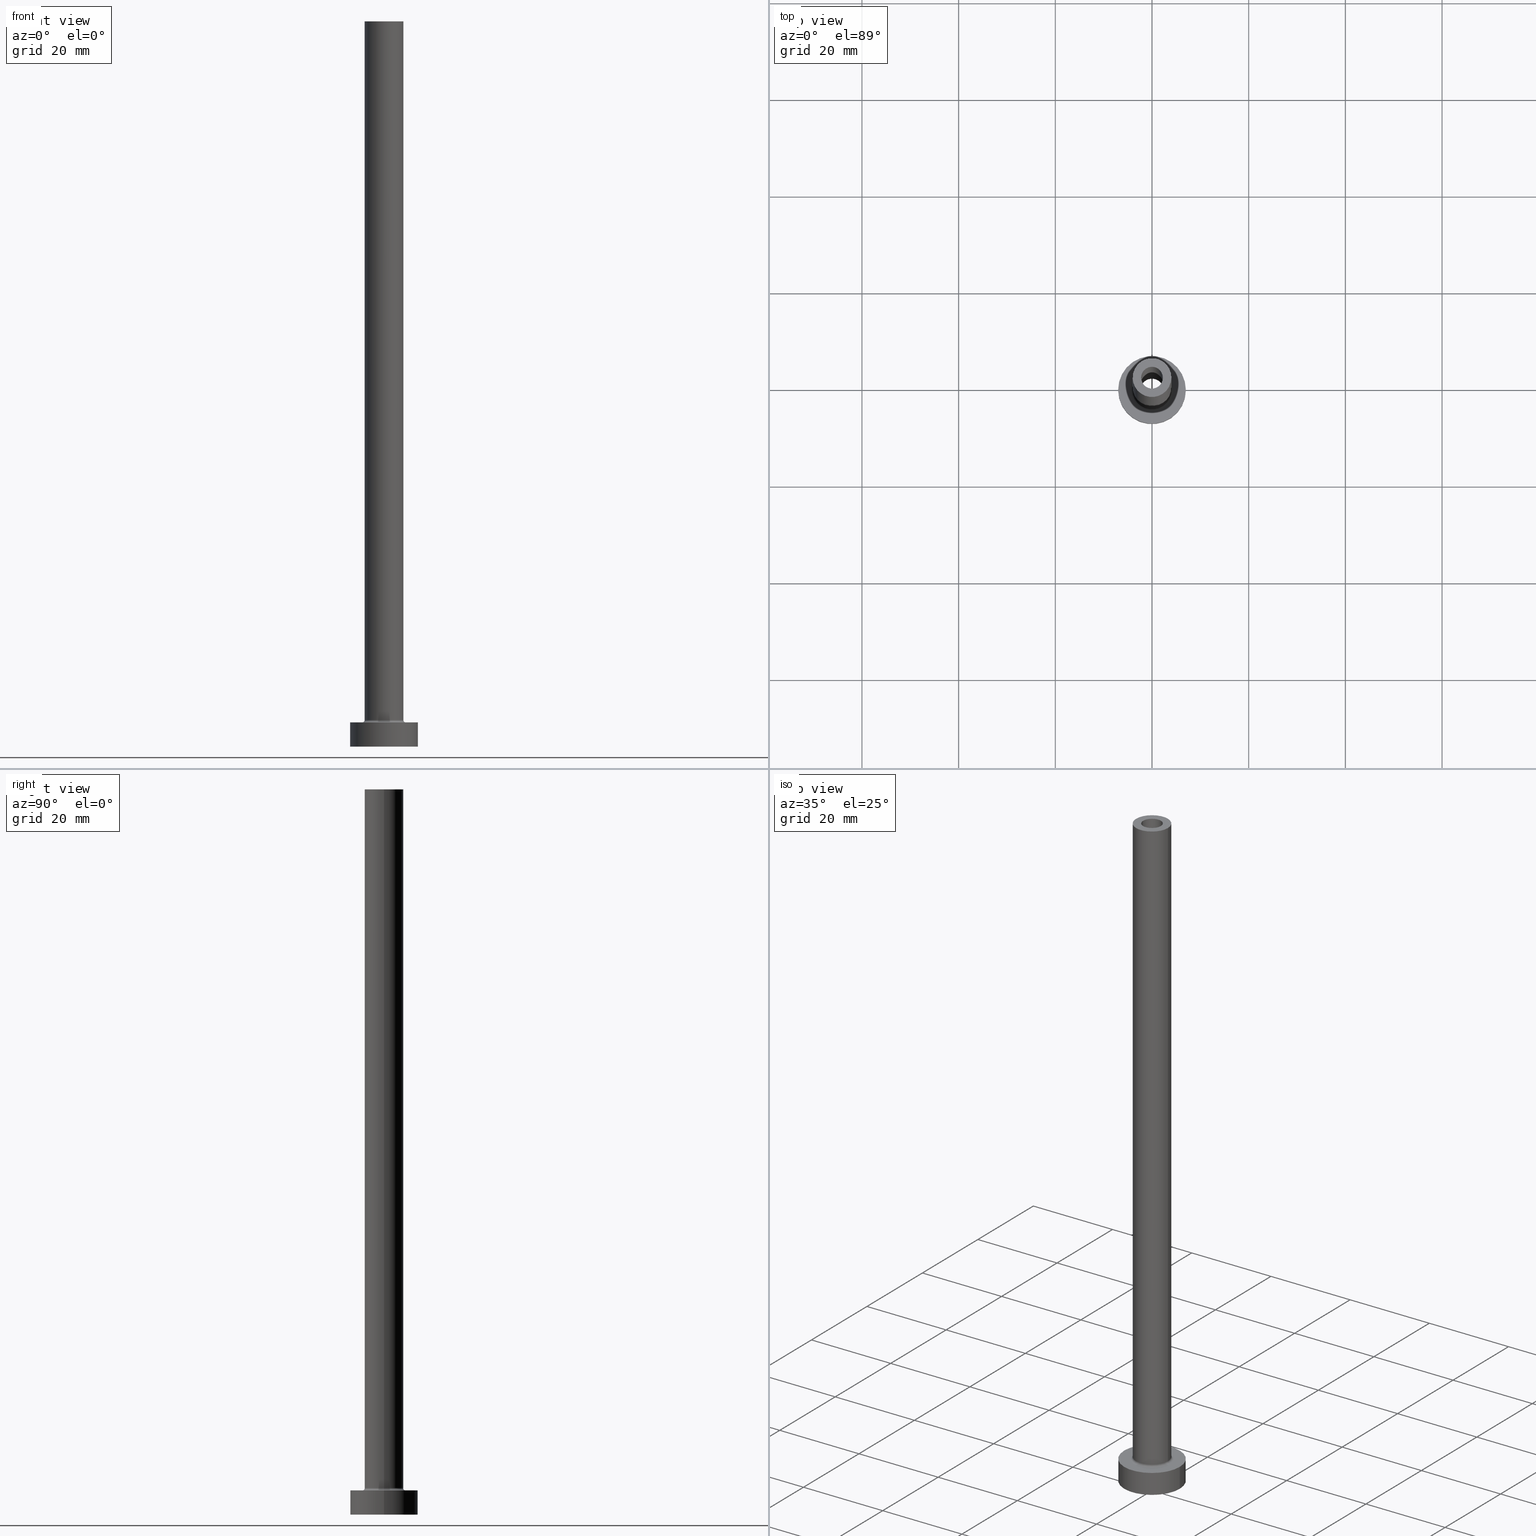
[diagram: canonical four-view strip — front | top / right | iso, engineering-drawing reading convention]
A machine part, canonical four-view strip (front | top / right | iso — engineering-drawing reading convention). The complete STEP part file that produces these views, byte-faithful:
ISO-10303-21;
HEADER;
FILE_DESCRIPTION (( 'STEP AP203' ),
    '1' );
FILE_NAME ('119c.STEP',
    '2023-02-13T17:23:35',
    ( '' ),
    ( '' ),
    'SwSTEP 2.0',
    'SolidWorks 2019',
    '' );
FILE_SCHEMA (( 'CONFIG_CONTROL_DESIGN' ));
ENDSEC;

DATA;
#1 = EDGE_CURVE ( 'NONE', #356, #197, #260, .T. ) ;
#2 = VERTEX_POINT ( 'NONE', #202 ) ;
#3 = CARTESIAN_POINT ( 'NONE',  ( -4.500000000000000888, 5.510910596163089556E-16, 5.500000000000005329 ) ) ;
#4 = ORIENTED_EDGE ( 'NONE', *, *, #62, .T. ) ;
#5 = AXIS2_PLACEMENT_3D ( 'NONE', #313, #118, #311 ) ;
#6 = DIRECTION ( 'NONE',  ( 1.000000000000000000, 0.000000000000000000, 0.000000000000000000 ) ) ;
#7 = CIRCLE ( 'NONE', #188, 2.399999999999999911 ) ;
#8 = DIRECTION ( 'NONE',  ( 0.000000000000000000, 0.000000000000000000, 1.000000000000000000 ) ) ;
#9 = VECTOR ( 'NONE', #12, 1000.000000000000000 ) ;
#10 = CARTESIAN_POINT ( 'NONE',  ( 0.000000000000000000, 0.000000000000000000, 105.0000000000000000 ) ) ;
#11 = ORIENTED_EDGE ( 'NONE', *, *, #375, .F. ) ;
#12 = DIRECTION ( 'NONE',  ( -0.000000000000000000, -0.000000000000000000, -1.000000000000000000 ) ) ;
#13 = PERSON_AND_ORGANIZATION_ROLE ( 'classification_officer' ) ;
#14 = VERTEX_POINT ( 'NONE', #412 ) ;
#15 = CARTESIAN_POINT ( 'NONE',  ( 0.000000000000000000, 0.000000000000000000, 5.500000000000005329 ) ) ;
#16 = ORIENTED_EDGE ( 'NONE', *, *, #206, .T. ) ;
#17 = AXIS2_PLACEMENT_3D ( 'NONE', #153, #281, #395 ) ;
#18 = PERSON_AND_ORGANIZATION_ROLE ( 'creator' ) ;
#19 = PRODUCT_DEFINITION ( 'NEZN�M�', '', #446, #178 ) ;
#20 = DATE_AND_TIME ( #370, #330 ) ;
#21 = EDGE_CURVE ( 'NONE', #37, #204, #273, .T. ) ;
#22 = CIRCLE ( 'NONE', #241, 0.5000000000000004441 ) ;
#23 = CARTESIAN_POINT ( 'NONE',  ( -7.000000000000000000, 0.000000000000000000, 0.000000000000000000 ) ) ;
#24 = FACE_BOUND ( 'NONE', #299, .T. ) ;
#25 = DATE_TIME_ROLE ( 'classification_date' ) ;
#26 = CC_DESIGN_PERSON_AND_ORGANIZATION_ASSIGNMENT ( #407, #18, ( #19 ) ) ;
#27 = FACE_OUTER_BOUND ( 'NONE', #347, .T. ) ;
#28 = PLANE ( 'NONE',  #42 ) ;
#29 = CIRCLE ( 'NONE', #232, 4.500000000000000888 ) ;
#30 = VERTEX_POINT ( 'NONE', #107 ) ;
#31 = APPLICATION_CONTEXT ( 'configuration controlled 3d designs of mechanical parts and assemblies' ) ;
#32 = DIRECTION ( 'NONE',  ( 0.000000000000000000, 0.000000000000000000, 1.000000000000000000 ) ) ;
#33 = PLANE ( 'NONE',  #88 ) ;
#34 = ORIENTED_EDGE ( 'NONE', *, *, #397, .T. ) ;
#35 = CC_DESIGN_APPROVAL ( #114, ( #19 ) ) ;
#36 = CARTESIAN_POINT ( 'NONE',  ( -2.399999999999999911, 0.000000000000000000, 105.0000000000000000 ) ) ;
#37 = VERTEX_POINT ( 'NONE', #94 ) ;
#38 = CARTESIAN_POINT ( 'NONE',  ( 2.250000000000000000, 2.755455298081543792E-16, 105.0000000000000000 ) ) ;
#39 = CARTESIAN_POINT ( 'NONE',  ( 0.000000000000000000, 0.000000000000000000, 111.7882250993908571 ) ) ;
#40 = VERTEX_POINT ( 'NONE', #450 ) ;
#41 = CC_DESIGN_PERSON_AND_ORGANIZATION_ASSIGNMENT ( #323, #185, ( #222 ) ) ;
#42 = AXIS2_PLACEMENT_3D ( 'NONE', #263, #32, #414 ) ;
#43 = CARTESIAN_POINT ( 'NONE',  ( 0.000000000000000000, 0.000000000000000000, 5.500000000000005329 ) ) ;
#44 = DIRECTION ( 'NONE',  ( -1.000000000000000000, 0.000000000000000000, 0.000000000000000000 ) ) ;
#45 = VERTEX_POINT ( 'NONE', #67 ) ;
#46 = DIRECTION ( 'NONE',  ( 1.000000000000000000, 0.000000000000000000, 0.000000000000000000 ) ) ;
#47 = CC_DESIGN_APPROVAL ( #415, ( #446 ) ) ;
#48 = ORIENTED_EDGE ( 'NONE', *, *, #390, .F. ) ;
#49 = DIRECTION ( 'NONE',  ( 1.224646799147353207E-16, 1.000000000000000000, -0.000000000000000000 ) ) ;
#50 = CARTESIAN_POINT ( 'NONE',  ( 0.000000000000000000, 0.000000000000000000, 150.0000000000000000 ) ) ;
#51 = ORIENTED_EDGE ( 'NONE', *, *, #133, .T. ) ;
#52 = ADVANCED_FACE ( 'NONE', ( #137 ), #234, .T. ) ;
#53 = APPLICATION_PROTOCOL_DEFINITION ( 'international standard', 'config_control_design', 1994, #458 ) ;
#54 = AXIS2_PLACEMENT_3D ( 'NONE', #39, #175, #44 ) ;
#55 = CALENDAR_DATE ( 2023, 13, 2 ) ;
#56 = COORDINATED_UNIVERSAL_TIME_OFFSET ( 1, 0, .AHEAD. ) ;
#57 = VECTOR ( 'NONE', #327, 1000.000000000000000 ) ;
#58 = ORIENTED_EDGE ( 'NONE', *, *, #390, .T. ) ;
#59 = EDGE_LOOP ( 'NONE', ( #11, #342 ) ) ;
#60 = DIRECTION ( 'NONE',  ( -0.000000000000000000, -0.000000000000000000, -1.000000000000000000 ) ) ;
#61 = ORIENTED_EDGE ( 'NONE', *, *, #74, .T. ) ;
#62 = EDGE_CURVE ( 'NONE', #30, #356, #404, .T. ) ;
#63 = FACE_OUTER_BOUND ( 'NONE', #298, .T. ) ;
#64 = CARTESIAN_POINT ( 'NONE',  ( 0.000000000000000000, 0.000000000000000000, 105.0000000000000000 ) ) ;
#65 = CIRCLE ( 'NONE', #432, 4.000000000000000000 ) ;
#66 = PRODUCT_RELATED_PRODUCT_CATEGORY ( 'detail', '', ( #222 ) ) ;
#67 = CARTESIAN_POINT ( 'NONE',  ( 7.000000000000000000, 8.572527594031473190E-16, 0.000000000000000000 ) ) ;
#68 = ORIENTED_EDGE ( 'NONE', *, *, #268, .F. ) ;
#69 = CARTESIAN_POINT ( 'NONE',  ( 0.000000000000000000, 0.000000000000000000, 111.7882250993908571 ) ) ;
#70 = CARTESIAN_POINT ( 'NONE',  ( 0.000000000000000000, 0.000000000000000000, 105.0000000000000000 ) ) ;
#71 = EDGE_LOOP ( 'NONE', ( #193, #61, #382, #173 ) ) ;
#72 = AXIS2_PLACEMENT_3D ( 'NONE', #166, #60, #192 ) ;
#73 = CARTESIAN_POINT ( 'NONE',  ( -2.399999999999999911, 0.000000000000000000, 0.000000000000000000 ) ) ;
#74 = EDGE_CURVE ( 'NONE', #37, #77, #338, .T. ) ;
#75 = DIRECTION ( 'NONE',  ( 1.000000000000000000, 0.000000000000000000, 0.000000000000000000 ) ) ;
#76 = DIRECTION ( 'NONE',  ( -0.000000000000000000, -0.000000000000000000, -1.000000000000000000 ) ) ;
#77 = VERTEX_POINT ( 'NONE', #191 ) ;
#78 = FACE_BOUND ( 'NONE', #279, .T. ) ;
#79 = FACE_OUTER_BOUND ( 'NONE', #419, .T. ) ;
#80 = VERTEX_POINT ( 'NONE', #333 ) ;
#81 = APPROVAL_STATUS ( 'not_yet_approved' ) ;
#82 = ORIENTED_EDGE ( 'NONE', *, *, #190, .T. ) ;
#83 = ADVANCED_FACE ( 'NONE', ( #24, #134 ), #28, .T. ) ;
#84 = AXIS2_PLACEMENT_3D ( 'NONE', #64, #226, #421 ) ;
#85 = PRODUCT_DEFINITION_SHAPE ( 'NONE', 'NONE',  #19 ) ;
#86 = DIRECTION ( 'NONE',  ( 1.000000000000000000, 0.000000000000000000, 0.000000000000000000 ) ) ;
#87 = DIRECTION ( 'NONE',  ( 0.000000000000000000, 0.000000000000000000, -1.000000000000000000 ) ) ;
#88 = AXIS2_PLACEMENT_3D ( 'NONE', #169, #98, #295 ) ;
#89 = APPROVAL ( #416, 'NEUR�EN�' ) ;
#90 = PERSON_AND_ORGANIZATION ( #349, #116 ) ;
#91 = DIRECTION ( 'NONE',  ( 1.000000000000000000, 0.000000000000000000, -0.000000000000000000 ) ) ;
#92 = CIRCLE ( 'NONE', #5, 7.000000000000000000 ) ;
#93 = ORIENTED_EDGE ( 'NONE', *, *, #147, .T. ) ;
#94 = CARTESIAN_POINT ( 'NONE',  ( 2.399999999999999911, 2.939152317953647106E-16, 105.0000000000000000 ) ) ;
#95 = SECURITY_CLASSIFICATION ( '', '', #359 ) ;
#96 = COORDINATED_UNIVERSAL_TIME_OFFSET ( 1, 0, .AHEAD. ) ;
#97 = ADVANCED_FACE ( 'NONE', ( #417 ), #337, .F. ) ;
#98 = DIRECTION ( 'NONE',  ( 0.000000000000000000, 0.000000000000000000, 1.000000000000000000 ) ) ;
#99 = VERTEX_POINT ( 'NONE', #38 ) ;
#100 = APPROVAL_DATE_TIME ( #165, #89 ) ;
#101 = DIRECTION ( 'NONE',  ( 0.000000000000000000, 0.000000000000000000, -1.000000000000000000 ) ) ;
#102 = ORIENTED_EDGE ( 'NONE', *, *, #375, .T. ) ;
#103 = ORIENTED_EDGE ( 'NONE', *, *, #147, .F. ) ;
#104 = LOCAL_TIME ( 18, 23, 35.00000000000000000, #96 ) ;
#105 = EDGE_CURVE ( 'NONE', #364, #2, #365, .T. ) ;
#106 = CARTESIAN_POINT ( 'NONE',  ( -7.000000000000000000, 0.000000000000000000, 5.000000000000000000 ) ) ;
#107 = CARTESIAN_POINT ( 'NONE',  ( 2.250000000000000000, 2.755455298081543792E-16, 150.0000000000000000 ) ) ;
#108 = DIRECTION ( 'NONE',  ( 0.000000000000000000, -1.000000000000000000, 0.000000000000000000 ) ) ;
#109 = ORIENTED_EDGE ( 'NONE', *, *, #289, .F. ) ;
#110 = CARTESIAN_POINT ( 'NONE',  ( 2.250000000000000000, 2.755455298081543792E-16, 150.0000000000000000 ) ) ;
#111 = DIRECTION ( 'NONE',  ( 1.000000000000000000, 0.000000000000000000, -0.000000000000000000 ) ) ;
#112 = ORIENTED_EDGE ( 'NONE', *, *, #268, .T. ) ;
#113 = CARTESIAN_POINT ( 'NONE',  ( 0.000000000000000000, 0.000000000000000000, 5.000000000000000000 ) ) ;
#114 = APPROVAL ( #81, 'NEUR�EN�' ) ;
#115 = DIRECTION ( 'NONE',  ( -0.000000000000000000, -0.000000000000000000, -1.000000000000000000 ) ) ;
#116 = ORGANIZATION ( 'NEUR�EN�', 'NEUR�EN�', '' ) ;
#117 = ORIENTED_EDGE ( 'NONE', *, *, #296, .T. ) ;
#118 = DIRECTION ( 'NONE',  ( 0.000000000000000000, 0.000000000000000000, 1.000000000000000000 ) ) ;
#119 = ORIENTED_EDGE ( 'NONE', *, *, #133, .F. ) ;
#120 = DIRECTION ( 'NONE',  ( 0.000000000000000000, 0.000000000000000000, 1.000000000000000000 ) ) ;
#121 = FACE_OUTER_BOUND ( 'NONE', #309, .T. ) ;
#122 = ORIENTED_EDGE ( 'NONE', *, *, #164, .F. ) ;
#123 = DIRECTION ( 'NONE',  ( 0.000000000000000000, 0.000000000000000000, 1.000000000000000000 ) ) ;
#124 = APPROVAL_ROLE ( '' ) ;
#125 = AXIS2_PLACEMENT_3D ( 'NONE', #142, #162, #91 ) ;
#126 = DIRECTION ( 'NONE',  ( 0.000000000000000000, 0.000000000000000000, 1.000000000000000000 ) ) ;
#127 =( NAMED_UNIT ( * ) SI_UNIT ( $, .STERADIAN. ) SOLID_ANGLE_UNIT ( ) );
#128 = VECTOR ( 'NONE', #266, 1000.000000000000000 ) ;
#129 = EDGE_CURVE ( 'NONE', #197, #99, #224, .T. ) ;
#130 = DATE_TIME_ROLE ( 'creation_date' ) ;
#131 = CIRCLE ( 'NONE', #186, 7.000000000000000000 ) ;
#132 = DIRECTION ( 'NONE',  ( 0.000000000000000000, 0.000000000000000000, 1.000000000000000000 ) ) ;
#133 = EDGE_CURVE ( 'NONE', #80, #151, #92, .T. ) ;
#134 = FACE_OUTER_BOUND ( 'NONE', #139, .T. ) ;
#135 = CIRCLE ( 'NONE', #315, 2.399999999999999911 ) ;
#136 = CALENDAR_DATE ( 2023, 13, 2 ) ;
#137 = FACE_OUTER_BOUND ( 'NONE', #383, .T. ) ;
#138 = DIRECTION ( 'NONE',  ( 1.000000000000000000, 0.000000000000000000, 0.000000000000000000 ) ) ;
#139 = EDGE_LOOP ( 'NONE', ( #51, #220 ) ) ;
#140 = APPROVAL_PERSON_ORGANIZATION ( #221, #415, #124 ) ;
#141 = DIRECTION ( 'NONE',  ( 0.000000000000000000, 0.000000000000000000, 1.000000000000000000 ) ) ;
#142 = CARTESIAN_POINT ( 'NONE',  ( 0.000000000000000000, 0.000000000000000000, 150.0000000000000000 ) ) ;
#143 = ORIENTED_EDGE ( 'NONE', *, *, #296, .F. ) ;
#144 = DIRECTION ( 'NONE',  ( -0.000000000000000000, -0.000000000000000000, -1.000000000000000000 ) ) ;
#145 = AXIS2_PLACEMENT_3D ( 'NONE', #113, #219, #244 ) ;
#146 = ORIENTED_EDGE ( 'NONE', *, *, #227, .F. ) ;
#147 = EDGE_CURVE ( 'NONE', #30, #99, #424, .T. ) ;
#148 = DIRECTION ( 'NONE',  ( 0.000000000000000000, 0.000000000000000000, 1.000000000000000000 ) ) ;
#149 = UNCERTAINTY_MEASURE_WITH_UNIT (LENGTH_MEASURE( 1.000000000000000082E-05 ), #156, 'distance_accuracy_value', 'NONE');
#150 = CIRCLE ( 'NONE', #17, 2.250000000000000000 ) ;
#151 = VERTEX_POINT ( 'NONE', #398 ) ;
#152 = CARTESIAN_POINT ( 'NONE',  ( 0.000000000000000000, 0.000000000000000000, 105.0000000000000000 ) ) ;
#153 = CARTESIAN_POINT ( 'NONE',  ( 0.000000000000000000, 0.000000000000000000, 150.0000000000000000 ) ) ;
#154 = FACE_OUTER_BOUND ( 'NONE', #176, .T. ) ;
#155 = CC_DESIGN_PERSON_AND_ORGANIZATION_ASSIGNMENT ( #317, #13, ( #95 ) ) ;
#156 =( LENGTH_UNIT ( ) NAMED_UNIT ( * ) SI_UNIT ( .MILLI., .METRE. ) );
#157 = DIRECTION ( 'NONE',  ( 1.000000000000000000, 0.000000000000000000, 0.000000000000000000 ) ) ;
#158 = CC_DESIGN_SECURITY_CLASSIFICATION ( #95, ( #446 ) ) ;
#159 = COORDINATED_UNIVERSAL_TIME_OFFSET ( 1, 0, .AHEAD. ) ;
#160 = LINE ( 'NONE', #286, #57 ) ;
#161 = EDGE_CURVE ( 'NONE', #14, #423, #357, .T. ) ;
#162 = DIRECTION ( 'NONE',  ( 0.000000000000000000, 0.000000000000000000, 1.000000000000000000 ) ) ;
#163 = AXIS2_PLACEMENT_3D ( 'NONE', #15, #367, #157 ) ;
#164 = EDGE_CURVE ( 'NONE', #204, #37, #7, .T. ) ;
#165 = DATE_AND_TIME ( #294, #104 ) ;
#166 = CARTESIAN_POINT ( 'NONE',  ( 0.000000000000000000, 0.000000000000000000, 5.000000000000000000 ) ) ;
#167 = LOCAL_TIME ( 18, 23, 35.00000000000000000, #454 ) ;
#168 = CC_DESIGN_PERSON_AND_ORGANIZATION_ASSIGNMENT ( #90, #217, ( #446 ) ) ;
#169 = CARTESIAN_POINT ( 'NONE',  ( 0.000000000000000000, 0.000000000000000000, 0.000000000000000000 ) ) ;
#170 = ORIENTED_EDGE ( 'NONE', *, *, #408, .F. ) ;
#171 = DIRECTION ( 'NONE',  ( 1.000000000000000000, 0.000000000000000000, 0.000000000000000000 ) ) ;
#172 = ADVANCED_FACE ( 'NONE', ( #174 ), #237, .F. ) ;
#173 = ORIENTED_EDGE ( 'NONE', *, *, #379, .F. ) ;
#174 = FACE_OUTER_BOUND ( 'NONE', #71, .T. ) ;
#175 = DIRECTION ( 'NONE',  ( 0.000000000000000000, 0.000000000000000000, -1.000000000000000000 ) ) ;
#176 = EDGE_LOOP ( 'NONE', ( #200, #459 ) ) ;
#177 = DIRECTION ( 'NONE',  ( -1.000000000000000000, 0.000000000000000000, 0.000000000000000000 ) ) ;
#178 = DESIGN_CONTEXT ( 'detailed design', #458, 'design' ) ;
#179 = DIRECTION ( 'NONE',  ( -1.000000000000000000, 0.000000000000000000, 0.000000000000000000 ) ) ;
#180 = ADVANCED_FACE ( 'NONE', ( #240 ), #354, .T. ) ;
#181 = ORIENTED_EDGE ( 'NONE', *, *, #184, .T. ) ;
#182 = PLANE ( 'NONE',  #125 ) ;
#183 = ORIENTED_EDGE ( 'NONE', *, *, #215, .F. ) ;
#184 = EDGE_CURVE ( 'NONE', #423, #396, #380, .T. ) ;
#185 = PERSON_AND_ORGANIZATION_ROLE ( 'design_owner' ) ;
#186 = AXIS2_PLACEMENT_3D ( 'NONE', #355, #391, #75 ) ;
#187 = DATE_AND_TIME ( #55, #284 ) ;
#188 = AXIS2_PLACEMENT_3D ( 'NONE', #152, #386, #352 ) ;
#189 = AXIS2_PLACEMENT_3D ( 'NONE', #413, #101, #293 ) ;
#190 = EDGE_CURVE ( 'NONE', #423, #364, #231, .T. ) ;
#191 = CARTESIAN_POINT ( 'NONE',  ( 2.399999999999999911, 2.939152317953647106E-16, 0.000000000000000000 ) ) ;
#192 = DIRECTION ( 'NONE',  ( -1.000000000000000000, 0.000000000000000000, 0.000000000000000000 ) ) ;
#193 = ORIENTED_EDGE ( 'NONE', *, *, #164, .T. ) ;
#194 = AXIS2_PLACEMENT_3D ( 'NONE', #198, #341, #345 ) ;
#195 = CARTESIAN_POINT ( 'NONE',  ( 0.000000000000000000, 0.000000000000000000, 150.0000000000000000 ) ) ;
#196 = EDGE_CURVE ( 'NONE', #77, #214, #399, .T. ) ;
#197 = VERTEX_POINT ( 'NONE', #348 ) ;
#198 = CARTESIAN_POINT ( 'NONE',  ( 0.000000000000000000, 0.000000000000000000, 5.000000000000000000 ) ) ;
#199 = FACE_OUTER_BOUND ( 'NONE', #455, .T. ) ;
#200 = ORIENTED_EDGE ( 'NONE', *, *, #215, .T. ) ;
#201 = ORIENTED_EDGE ( 'NONE', *, *, #223, .F. ) ;
#202 = CARTESIAN_POINT ( 'NONE',  ( 4.500000000000000888, 0.000000000000000000, 5.000000000000002665 ) ) ;
#203 = DIRECTION ( 'NONE',  ( 1.000000000000000000, 0.000000000000000000, 0.000000000000000000 ) ) ;
#204 = VERTEX_POINT ( 'NONE', #36 ) ;
#205 = DIRECTION ( 'NONE',  ( -0.000000000000000000, -0.000000000000000000, -1.000000000000000000 ) ) ;
#206 = EDGE_CURVE ( 'NONE', #303, #45, #251, .T. ) ;
#207 = FACE_OUTER_BOUND ( 'NONE', #249, .T. ) ;
#208 = ORIENTED_EDGE ( 'NONE', *, *, #129, .T. ) ;
#209 = DIRECTION ( 'NONE',  ( 1.000000000000000000, 0.000000000000000000, 0.000000000000000000 ) ) ;
#210 = DIRECTION ( 'NONE',  ( 1.000000000000000000, 0.000000000000000000, 0.000000000000000000 ) ) ;
#211 = CARTESIAN_POINT ( 'NONE',  ( 0.000000000000000000, 0.000000000000000000, 0.000000000000000000 ) ) ;
#212 = VECTOR ( 'NONE', #216, 1000.000000000000000 ) ;
#213 = DIRECTION ( 'NONE',  ( 0.000000000000000000, 0.000000000000000000, 1.000000000000000000 ) ) ;
#214 = VERTEX_POINT ( 'NONE', #73 ) ;
#215 = EDGE_CURVE ( 'NONE', #14, #40, #324, .T. ) ;
#216 = DIRECTION ( 'NONE',  ( 0.000000000000000000, 0.000000000000000000, -1.000000000000000000 ) ) ;
#217 = PERSON_AND_ORGANIZATION_ROLE ( 'design_supplier' ) ;
#218 = APPROVAL_PERSON_ORGANIZATION ( #443, #114, #255 ) ;
#219 = DIRECTION ( 'NONE',  ( -0.000000000000000000, -0.000000000000000000, -1.000000000000000000 ) ) ;
#220 = ORIENTED_EDGE ( 'NONE', *, *, #301, .T. ) ;
#221 = PERSON_AND_ORGANIZATION ( #349, #116 ) ;
#222 = PRODUCT ( '119c', '119c', '', ( #401 ) ) ;
#223 = EDGE_CURVE ( 'NONE', #151, #45, #276, .T. ) ;
#224 = CIRCLE ( 'NONE', #329, 2.250000000000000000 ) ;
#225 = CARTESIAN_POINT ( 'NONE',  ( 2.399999999999999911, 2.939152317953647106E-16, 111.7882250993908571 ) ) ;
#226 = DIRECTION ( 'NONE',  ( 0.000000000000000000, 0.000000000000000000, 1.000000000000000000 ) ) ;
#227 = EDGE_CURVE ( 'NONE', #40, #14, #65, .T. ) ;
#228 = DIRECTION ( 'NONE',  ( -0.000000000000000000, -0.000000000000000000, -1.000000000000000000 ) ) ;
#229 = VECTOR ( 'NONE', #374, 1000.000000000000000 ) ;
#230 = ORIENTED_EDGE ( 'NONE', *, *, #184, .F. ) ;
#231 = CIRCLE ( 'NONE', #291, 0.5000000000000004441 ) ;
#232 = AXIS2_PLACEMENT_3D ( 'NONE', #456, #447, #138 ) ;
#233 = CARTESIAN_POINT ( 'NONE',  ( 0.000000000000000000, 0.000000000000000000, 5.000000000000000000 ) ) ;
#234 = CYLINDRICAL_SURFACE ( 'NONE', #194, 7.000000000000000000 ) ;
#235 = CYLINDRICAL_SURFACE ( 'NONE', #54, 2.399999999999999911 ) ;
#236 = ADVANCED_FACE ( 'NONE', ( #78, #154 ), #182, .T. ) ;
#237 = CYLINDRICAL_SURFACE ( 'NONE', #304, 2.399999999999999911 ) ;
#238 = LINE ( 'NONE', #387, #252 ) ;
#239 = ORIENTED_EDGE ( 'NONE', *, *, #1, .F. ) ;
#240 = FACE_OUTER_BOUND ( 'NONE', #385, .T. ) ;
#241 = AXIS2_PLACEMENT_3D ( 'NONE', #248, #108, #253 ) ;
#242 = DIRECTION ( 'NONE',  ( 0.000000000000000000, 0.000000000000000000, -1.000000000000000000 ) ) ;
#243 = ORIENTED_EDGE ( 'NONE', *, *, #190, .F. ) ;
#244 = DIRECTION ( 'NONE',  ( 1.000000000000000000, 0.000000000000000000, 0.000000000000000000 ) ) ;
#245 = EDGE_CURVE ( 'NONE', #396, #423, #267, .T. ) ;
#246 = ORIENTED_EDGE ( 'NONE', *, *, #129, .F. ) ;
#247 = DIRECTION ( 'NONE',  ( 1.000000000000000000, 0.000000000000000000, 0.000000000000000000 ) ) ;
#248 = CARTESIAN_POINT ( 'NONE',  ( 4.500000000000000888, 0.000000000000000000, 5.500000000000005329 ) ) ;
#249 = EDGE_LOOP ( 'NONE', ( #425, #336, #321, #102 ) ) ;
#250 = CARTESIAN_POINT ( 'NONE',  ( 0.000000000000000000, 0.000000000000000000, 150.0000000000000000 ) ) ;
#251 = CIRCLE ( 'NONE', #400, 7.000000000000000000 ) ;
#252 = VECTOR ( 'NONE', #242, 1000.000000000000000 ) ;
#253 = DIRECTION ( 'NONE',  ( 0.000000000000000000, 0.000000000000000000, -1.000000000000000000 ) ) ;
#254 = ADVANCED_FACE ( 'NONE', ( #442 ), #439, .F. ) ;
#255 = APPROVAL_ROLE ( '' ) ;
#256 = PERSON_AND_ORGANIZATION_ROLE ( 'creator' ) ;
#257 = PERSON_AND_ORGANIZATION ( #349, #116 ) ;
#258 = MANIFOLD_SOLID_BREP ( 'Odebrat vysunut�m4', #426 ) ;
#259 = AXIS2_PLACEMENT_3D ( 'NONE', #43, #431, #319 ) ;
#260 = LINE ( 'NONE', #344, #128 ) ;
#261 = PERSON_AND_ORGANIZATION ( #349, #116 ) ;
#262 = AXIS2_PLACEMENT_3D ( 'NONE', #402, #126, #86 ) ;
#263 = CARTESIAN_POINT ( 'NONE',  ( 0.000000000000000000, 0.000000000000000000, 5.000000000000000000 ) ) ;
#264 = CYLINDRICAL_SURFACE ( 'NONE', #189, 2.250000000000000000 ) ;
#265 = DIRECTION ( 'NONE',  ( 0.000000000000000000, 0.000000000000000000, 1.000000000000000000 ) ) ;
#266 = DIRECTION ( 'NONE',  ( 0.000000000000000000, 0.000000000000000000, -1.000000000000000000 ) ) ;
#267 = CIRCLE ( 'NONE', #163, 4.000000000000000000 ) ;
#268 = EDGE_CURVE ( 'NONE', #40, #396, #160, .T. ) ;
#269 = DIRECTION ( 'NONE',  ( 1.000000000000000000, 0.000000000000000000, 0.000000000000000000 ) ) ;
#270 = DIRECTION ( 'NONE',  ( -1.000000000000000000, 1.224646799147351482E-16, 0.000000000000000000 ) ) ;
#271 = PLANE ( 'NONE',  #340 ) ;
#272 = ORIENTED_EDGE ( 'NONE', *, *, #245, .T. ) ;
#273 = CIRCLE ( 'NONE', #84, 2.399999999999999911 ) ;
#274 = CARTESIAN_POINT ( 'NONE',  ( -4.500000000000000888, 5.510910596163088569E-16, 5.000000000000002665 ) ) ;
#275 = EDGE_LOOP ( 'NONE', ( #208, #58 ) ) ;
#276 = LINE ( 'NONE', #392, #9 ) ;
#277 = ADVANCED_FACE ( 'NONE', ( #332 ), #264, .F. ) ;
#278 = CIRCLE ( 'NONE', #358, 7.000000000000000000 ) ;
#279 = EDGE_LOOP ( 'NONE', ( #170, #318 ) ) ;
#280 = CARTESIAN_POINT ( 'NONE',  ( 0.000000000000000000, 0.000000000000000000, 150.0000000000000000 ) ) ;
#281 = DIRECTION ( 'NONE',  ( 0.000000000000000000, 0.000000000000000000, 1.000000000000000000 ) ) ;
#282 = ORIENTED_EDGE ( 'NONE', *, *, #434, .F. ) ;
#283 = CYLINDRICAL_SURFACE ( 'NONE', #381, 4.000000000000000000 ) ;
#284 = LOCAL_TIME ( 18, 23, 35.00000000000000000, #290 ) ;
#285 = ADVANCED_FACE ( 'NONE', ( #448, #199 ), #33, .F. ) ;
#286 = CARTESIAN_POINT ( 'NONE',  ( 4.000000000000000000, 4.898587196589412829E-16, 150.0000000000000000 ) ) ;
#287 = CALENDAR_DATE ( 2023, 13, 2 ) ;
#288 = DIRECTION ( 'NONE',  ( -1.000000000000000000, 0.000000000000000000, 0.000000000000000000 ) ) ;
#289 = EDGE_CURVE ( 'NONE', #2, #364, #29, .T. ) ;
#290 = COORDINATED_UNIVERSAL_TIME_OFFSET ( 1, 0, .AHEAD. ) ;
#291 = AXIS2_PLACEMENT_3D ( 'NONE', #3, #49, #270 ) ;
#292 = APPROVAL_PERSON_ORGANIZATION ( #261, #89, #410 ) ;
#293 = DIRECTION ( 'NONE',  ( -1.000000000000000000, 0.000000000000000000, 0.000000000000000000 ) ) ;
#294 = CALENDAR_DATE ( 2023, 13, 2 ) ;
#295 = DIRECTION ( 'NONE',  ( 1.000000000000000000, 0.000000000000000000, -0.000000000000000000 ) ) ;
#296 = EDGE_CURVE ( 'NONE', #80, #303, #418, .T. ) ;
#297 = AXIS2_PLACEMENT_3D ( 'NONE', #325, #87, #322 ) ;
#298 = EDGE_LOOP ( 'NONE', ( #201, #119, #117, #16 ) ) ;
#299 = EDGE_LOOP ( 'NONE', ( #339, #312 ) ) ;
#300 = ORIENTED_EDGE ( 'NONE', *, *, #161, .F. ) ;
#301 = EDGE_CURVE ( 'NONE', #151, #80, #278, .T. ) ;
#302 = CARTESIAN_POINT ( 'NONE',  ( 0.000000000000000000, 0.000000000000000000, 5.500000000000005329 ) ) ;
#303 = VERTEX_POINT ( 'NONE', #23 ) ;
#304 = AXIS2_PLACEMENT_3D ( 'NONE', #69, #428, #177 ) ;
#305 = AXIS2_PLACEMENT_3D ( 'NONE', #280, #148, #209 ) ;
#306 = ORIENTED_EDGE ( 'NONE', *, *, #397, .F. ) ;
#307 = DIRECTION ( 'NONE',  ( 1.000000000000000000, 0.000000000000000000, 0.000000000000000000 ) ) ;
#308 = CARTESIAN_POINT ( 'NONE',  ( -2.250000000000000000, 0.000000000000000000, 150.0000000000000000 ) ) ;
#309 = EDGE_LOOP ( 'NONE', ( #243, #438, #377, #436 ) ) ;
#310 = CC_DESIGN_DATE_AND_TIME_ASSIGNMENT ( #405, #130, ( #19 ) ) ;
#311 = DIRECTION ( 'NONE',  ( 1.000000000000000000, 0.000000000000000000, 0.000000000000000000 ) ) ;
#312 = ORIENTED_EDGE ( 'NONE', *, *, #105, .T. ) ;
#313 = CARTESIAN_POINT ( 'NONE',  ( 0.000000000000000000, 0.000000000000000000, 5.000000000000000000 ) ) ;
#314 = AXIS2_PLACEMENT_3D ( 'NONE', #250, #205, #179 ) ;
#315 = AXIS2_PLACEMENT_3D ( 'NONE', #429, #115, #203 ) ;
#316 = DIRECTION ( 'NONE',  ( 0.000000000000000000, 0.000000000000000000, 1.000000000000000000 ) ) ;
#317 = PERSON_AND_ORGANIZATION ( #349, #116 ) ;
#318 = ORIENTED_EDGE ( 'NONE', *, *, #62, .F. ) ;
#319 = DIRECTION ( 'NONE',  ( 1.000000000000000000, 0.000000000000000000, 0.000000000000000000 ) ) ;
#320 = APPROVAL_DATE_TIME ( #20, #114 ) ;
#321 = ORIENTED_EDGE ( 'NONE', *, *, #379, .T. ) ;
#322 = DIRECTION ( 'NONE',  ( -1.000000000000000000, 0.000000000000000000, 0.000000000000000000 ) ) ;
#323 = PERSON_AND_ORGANIZATION ( #349, #116 ) ;
#324 = CIRCLE ( 'NONE', #305, 4.000000000000000000 ) ;
#325 = CARTESIAN_POINT ( 'NONE',  ( 0.000000000000000000, 0.000000000000000000, 150.0000000000000000 ) ) ;
#326 = APPROVAL_DATE_TIME ( #187, #415 ) ;
#327 = DIRECTION ( 'NONE',  ( -0.000000000000000000, -0.000000000000000000, -1.000000000000000000 ) ) ;
#328 = CC_DESIGN_PERSON_AND_ORGANIZATION_ASSIGNMENT ( #257, #256, ( #446 ) ) ;
#329 = AXIS2_PLACEMENT_3D ( 'NONE', #437, #123, #307 ) ;
#330 = LOCAL_TIME ( 18, 23, 35.00000000000000000, #56 ) ;
#331 = DIRECTION ( 'NONE',  ( 1.000000000000000000, 0.000000000000000000, 0.000000000000000000 ) ) ;
#332 = FACE_OUTER_BOUND ( 'NONE', #360, .T. ) ;
#333 = CARTESIAN_POINT ( 'NONE',  ( -7.000000000000000000, 0.000000000000000000, 5.000000000000000000 ) ) ;
#334 = ADVANCED_FACE ( 'NONE', ( #63 ), #411, .T. ) ;
#335 = FACE_BOUND ( 'NONE', #275, .T. ) ;
#336 = ORIENTED_EDGE ( 'NONE', *, *, #21, .T. ) ;
#337 = TOROIDAL_SURFACE ( 'NONE', #259, 4.500000000000000888, 0.5000000000000000000 ) ;
#338 = LINE ( 'NONE', #225, #229 ) ;
#339 = ORIENTED_EDGE ( 'NONE', *, *, #289, .T. ) ;
#340 = AXIS2_PLACEMENT_3D ( 'NONE', #10, #422, #111 ) ;
#341 = DIRECTION ( 'NONE',  ( -0.000000000000000000, -0.000000000000000000, -1.000000000000000000 ) ) ;
#342 = ORIENTED_EDGE ( 'NONE', *, *, #196, .F. ) ;
#343 = ADVANCED_FACE ( 'NONE', ( #335, #27 ), #271, .F. ) ;
#344 = CARTESIAN_POINT ( 'NONE',  ( -2.250000000000000000, 0.000000000000000000, 150.0000000000000000 ) ) ;
#345 = DIRECTION ( 'NONE',  ( -1.000000000000000000, 0.000000000000000000, 0.000000000000000000 ) ) ;
#346 = VECTOR ( 'NONE', #76, 1000.000000000000000 ) ;
#347 = EDGE_LOOP ( 'NONE', ( #122, #457 ) ) ;
#348 = CARTESIAN_POINT ( 'NONE',  ( -2.250000000000000000, 0.000000000000000000, 105.0000000000000000 ) ) ;
#349 = PERSON ( 'NEUR�EN�', 'NEUR�EN�', 'NEUR�EN�', ('NEUR�EN�'), ('NEUR�EN�'), ('NEUR�EN�') ) ;
#350 = CC_DESIGN_APPROVAL ( #89, ( #95 ) ) ;
#351 = ORIENTED_EDGE ( 'NONE', *, *, #301, .F. ) ;
#352 = DIRECTION ( 'NONE',  ( 1.000000000000000000, 0.000000000000000000, 0.000000000000000000 ) ) ;
#353 = ORIENTED_EDGE ( 'NONE', *, *, #161, .T. ) ;
#354 = CYLINDRICAL_SURFACE ( 'NONE', #314, 4.000000000000000000 ) ;
#355 = CARTESIAN_POINT ( 'NONE',  ( 0.000000000000000000, 0.000000000000000000, 0.000000000000000000 ) ) ;
#356 = VERTEX_POINT ( 'NONE', #308 ) ;
#357 = LINE ( 'NONE', #394, #346 ) ;
#358 = AXIS2_PLACEMENT_3D ( 'NONE', #233, #132, #331 ) ;
#359 = SECURITY_CLASSIFICATION_LEVEL ( 'unclassified' ) ;
#360 = EDGE_LOOP ( 'NONE', ( #388, #93, #246, #239 ) ) ;
#361 = CARTESIAN_POINT ( 'NONE',  ( 0.000000000000000000, 0.000000000000000000, 5.500000000000005329 ) ) ;
#362 = CC_DESIGN_DATE_AND_TIME_ASSIGNMENT ( #371, #25, ( #95 ) ) ;
#363 = APPLICATION_PROTOCOL_DEFINITION ( 'international standard', 'config_control_design', 1994, #31 ) ;
#364 = VERTEX_POINT ( 'NONE', #274 ) ;
#365 = CIRCLE ( 'NONE', #145, 4.500000000000000888 ) ;
#366 =( NAMED_UNIT ( * ) PLANE_ANGLE_UNIT ( ) SI_UNIT ( $, .RADIAN. ) );
#367 = DIRECTION ( 'NONE',  ( 0.000000000000000000, 0.000000000000000000, 1.000000000000000000 ) ) ;
#368 = LOCAL_TIME ( 18, 23, 35.00000000000000000, #159 ) ;
#369 = APPROVAL_STATUS ( 'not_yet_approved' ) ;
#370 = CALENDAR_DATE ( 2023, 13, 2 ) ;
#371 = DATE_AND_TIME ( #136, #167 ) ;
#372 = CIRCLE ( 'NONE', #440, 2.250000000000000000 ) ;
#373 = EDGE_LOOP ( 'NONE', ( #103, #4, #430, #48 ) ) ;
#374 = DIRECTION ( 'NONE',  ( 0.000000000000000000, 0.000000000000000000, -1.000000000000000000 ) ) ;
#375 = EDGE_CURVE ( 'NONE', #214, #77, #135, .T. ) ;
#376 = AXIS2_PLACEMENT_3D ( 'NONE', #195, #265, #409 ) ;
#377 = ORIENTED_EDGE ( 'NONE', *, *, #434, .T. ) ;
#378 = SHAPE_DEFINITION_REPRESENTATION ( #85, #445 ) ;
#379 = EDGE_CURVE ( 'NONE', #204, #214, #238, .T. ) ;
#380 = CIRCLE ( 'NONE', #444, 4.000000000000000000 ) ;
#381 = AXIS2_PLACEMENT_3D ( 'NONE', #50, #441, #288 ) ;
#382 = ORIENTED_EDGE ( 'NONE', *, *, #196, .T. ) ;
#383 = EDGE_LOOP ( 'NONE', ( #351, #449, #34, #143 ) ) ;
#384 = ORIENTED_EDGE ( 'NONE', *, *, #206, .F. ) ;
#385 = EDGE_LOOP ( 'NONE', ( #68, #183, #353, #181 ) ) ;
#386 = DIRECTION ( 'NONE',  ( 0.000000000000000000, 0.000000000000000000, 1.000000000000000000 ) ) ;
#387 = CARTESIAN_POINT ( 'NONE',  ( -2.399999999999999911, 0.000000000000000000, 111.7882250993908571 ) ) ;
#388 = ORIENTED_EDGE ( 'NONE', *, *, #408, .T. ) ;
#389 = CARTESIAN_POINT ( 'NONE',  ( 0.000000000000000000, 0.000000000000000000, 0.000000000000000000 ) ) ;
#390 = EDGE_CURVE ( 'NONE', #99, #197, #372, .T. ) ;
#391 = DIRECTION ( 'NONE',  ( 0.000000000000000000, 0.000000000000000000, 1.000000000000000000 ) ) ;
#392 = CARTESIAN_POINT ( 'NONE',  ( 7.000000000000000000, 8.572527594031473190E-16, 5.000000000000000000 ) ) ;
#393 = CARTESIAN_POINT ( 'NONE',  ( 4.000000000000000000, 4.898587196589412829E-16, 5.500000000000005329 ) ) ;
#394 = CARTESIAN_POINT ( 'NONE',  ( -4.000000000000000000, 0.000000000000000000, 150.0000000000000000 ) ) ;
#395 = DIRECTION ( 'NONE',  ( 1.000000000000000000, 0.000000000000000000, 0.000000000000000000 ) ) ;
#396 = VERTEX_POINT ( 'NONE', #393 ) ;
#397 = EDGE_CURVE ( 'NONE', #45, #303, #131, .T. ) ;
#398 = CARTESIAN_POINT ( 'NONE',  ( 7.000000000000000000, 8.572527594031473190E-16, 5.000000000000000000 ) ) ;
#399 = CIRCLE ( 'NONE', #460, 2.399999999999999911 ) ;
#400 = AXIS2_PLACEMENT_3D ( 'NONE', #211, #316, #171 ) ;
#401 = MECHANICAL_CONTEXT ( 'NONE', #31, 'mechanical' ) ;
#402 = CARTESIAN_POINT ( 'NONE',  ( 0.000000000000000000, 0.000000000000000000, 0.000000000000000000 ) ) ;
#403 = ADVANCED_FACE ( 'NONE', ( #207 ), #235, .F. ) ;
#404 = CIRCLE ( 'NONE', #376, 2.250000000000000000 ) ;
#405 = DATE_AND_TIME ( #287, #368 ) ;
#406 = AXIS2_PLACEMENT_3D ( 'NONE', #302, #141, #269 ) ;
#407 = PERSON_AND_ORGANIZATION ( #349, #116 ) ;
#408 = EDGE_CURVE ( 'NONE', #356, #30, #150, .T. ) ;
#409 = DIRECTION ( 'NONE',  ( 1.000000000000000000, 0.000000000000000000, 0.000000000000000000 ) ) ;
#410 = APPROVAL_ROLE ( '' ) ;
#411 = CYLINDRICAL_SURFACE ( 'NONE', #72, 7.000000000000000000 ) ;
#412 = CARTESIAN_POINT ( 'NONE',  ( -4.000000000000000000, 0.000000000000000000, 150.0000000000000000 ) ) ;
#413 = CARTESIAN_POINT ( 'NONE',  ( 0.000000000000000000, 0.000000000000000000, 150.0000000000000000 ) ) ;
#414 = DIRECTION ( 'NONE',  ( 1.000000000000000000, 0.000000000000000000, -0.000000000000000000 ) ) ;
#415 = APPROVAL ( #369, 'NEUR�EN�' ) ;
#416 = APPROVAL_STATUS ( 'not_yet_approved' ) ;
#417 = FACE_OUTER_BOUND ( 'NONE', #453, .T. ) ;
#418 = LINE ( 'NONE', #106, #461 ) ;
#419 = EDGE_LOOP ( 'NONE', ( #146, #112, #272, #300 ) ) ;
#420 =( GEOMETRIC_REPRESENTATION_CONTEXT ( 3 ) GLOBAL_UNCERTAINTY_ASSIGNED_CONTEXT ( ( #149 ) ) GLOBAL_UNIT_ASSIGNED_CONTEXT ( ( #156, #366, #127 ) ) REPRESENTATION_CONTEXT ( 'NONE', 'WORKASPACE' ) );
#421 = DIRECTION ( 'NONE',  ( 1.000000000000000000, 0.000000000000000000, 0.000000000000000000 ) ) ;
#422 = DIRECTION ( 'NONE',  ( 0.000000000000000000, 0.000000000000000000, 1.000000000000000000 ) ) ;
#423 = VERTEX_POINT ( 'NONE', #435 ) ;
#424 = LINE ( 'NONE', #110, #212 ) ;
#425 = ORIENTED_EDGE ( 'NONE', *, *, #74, .F. ) ;
#426 = CLOSED_SHELL ( 'NONE', ( #277, #172, #97, #452, #52, #334, #83, #285, #180, #236, #427, #403, #343, #254 ) ) ;
#427 = ADVANCED_FACE ( 'NONE', ( #121 ), #451, .F. ) ;
#428 = DIRECTION ( 'NONE',  ( 0.000000000000000000, 0.000000000000000000, -1.000000000000000000 ) ) ;
#429 = CARTESIAN_POINT ( 'NONE',  ( 0.000000000000000000, 0.000000000000000000, 0.000000000000000000 ) ) ;
#430 = ORIENTED_EDGE ( 'NONE', *, *, #1, .T. ) ;
#431 = DIRECTION ( 'NONE',  ( 0.000000000000000000, 0.000000000000000000, 1.000000000000000000 ) ) ;
#432 = AXIS2_PLACEMENT_3D ( 'NONE', #433, #120, #247 ) ;
#433 = CARTESIAN_POINT ( 'NONE',  ( 0.000000000000000000, 0.000000000000000000, 150.0000000000000000 ) ) ;
#434 = EDGE_CURVE ( 'NONE', #396, #2, #22, .T. ) ;
#435 = CARTESIAN_POINT ( 'NONE',  ( -4.000000000000000000, 0.000000000000000000, 5.500000000000005329 ) ) ;
#436 = ORIENTED_EDGE ( 'NONE', *, *, #105, .F. ) ;
#437 = CARTESIAN_POINT ( 'NONE',  ( 0.000000000000000000, 0.000000000000000000, 105.0000000000000000 ) ) ;
#438 = ORIENTED_EDGE ( 'NONE', *, *, #245, .F. ) ;
#439 = CYLINDRICAL_SURFACE ( 'NONE', #297, 2.250000000000000000 ) ;
#440 = AXIS2_PLACEMENT_3D ( 'NONE', #70, #213, #210 ) ;
#441 = DIRECTION ( 'NONE',  ( -0.000000000000000000, -0.000000000000000000, -1.000000000000000000 ) ) ;
#442 = FACE_OUTER_BOUND ( 'NONE', #373, .T. ) ;
#443 = PERSON_AND_ORGANIZATION ( #349, #116 ) ;
#444 = AXIS2_PLACEMENT_3D ( 'NONE', #361, #8, #6 ) ;
#445 = ADVANCED_BREP_SHAPE_REPRESENTATION ( '119c', ( #258, #262 ), #420 ) ;
#446 = PRODUCT_DEFINITION_FORMATION_WITH_SPECIFIED_SOURCE ( 'LIBOVOLN�', '', #222, .NOT_KNOWN. ) ;
#447 = DIRECTION ( 'NONE',  ( -0.000000000000000000, -0.000000000000000000, -1.000000000000000000 ) ) ;
#448 = FACE_BOUND ( 'NONE', #59, .T. ) ;
#449 = ORIENTED_EDGE ( 'NONE', *, *, #223, .T. ) ;
#450 = CARTESIAN_POINT ( 'NONE',  ( 4.000000000000000000, 4.898587196589412829E-16, 150.0000000000000000 ) ) ;
#451 = TOROIDAL_SURFACE ( 'NONE', #406, 4.500000000000000888, 0.5000000000000000000 ) ;
#452 = ADVANCED_FACE ( 'NONE', ( #79 ), #283, .T. ) ;
#453 = EDGE_LOOP ( 'NONE', ( #230, #82, #109, #282 ) ) ;
#454 = COORDINATED_UNIVERSAL_TIME_OFFSET ( 1, 0, .AHEAD. ) ;
#455 = EDGE_LOOP ( 'NONE', ( #384, #306 ) ) ;
#456 = CARTESIAN_POINT ( 'NONE',  ( 0.000000000000000000, 0.000000000000000000, 5.000000000000000000 ) ) ;
#457 = ORIENTED_EDGE ( 'NONE', *, *, #21, .F. ) ;
#458 = APPLICATION_CONTEXT ( 'configuration controlled 3d designs of mechanical parts and assemblies' ) ;
#459 = ORIENTED_EDGE ( 'NONE', *, *, #227, .T. ) ;
#460 = AXIS2_PLACEMENT_3D ( 'NONE', #389, #144, #46 ) ;
#461 = VECTOR ( 'NONE', #228, 1000.000000000000000 ) ;
ENDSEC;
END-ISO-10303-21;
